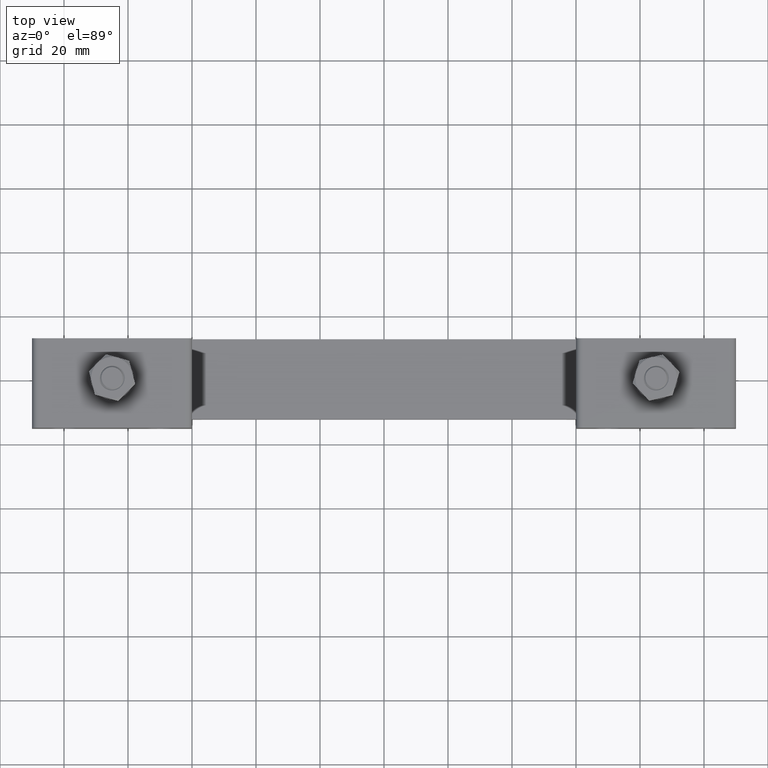
[diagram: clean part render]
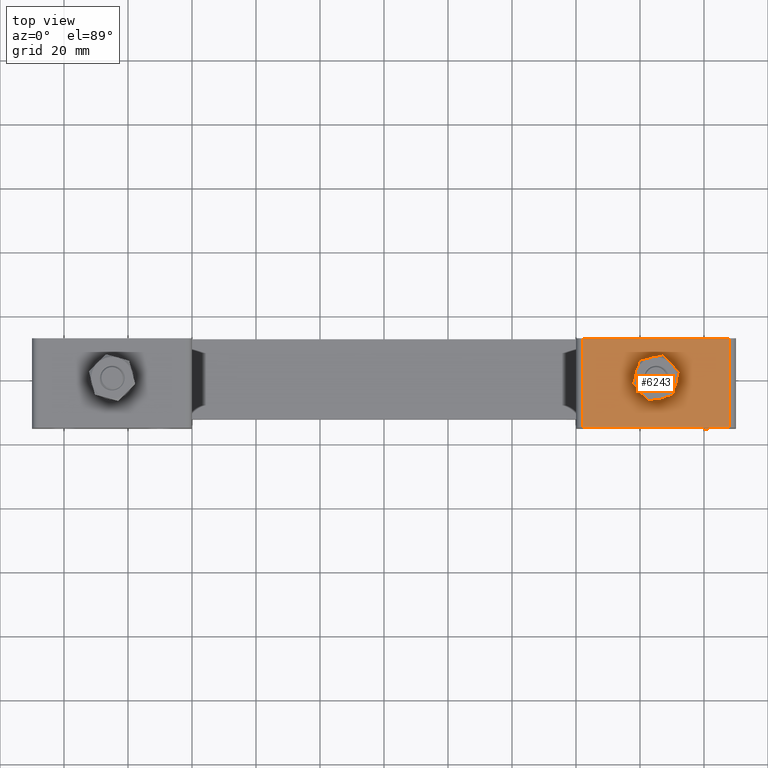
[diagram: same view with one face highlighted and labeled with its STEP entity id]
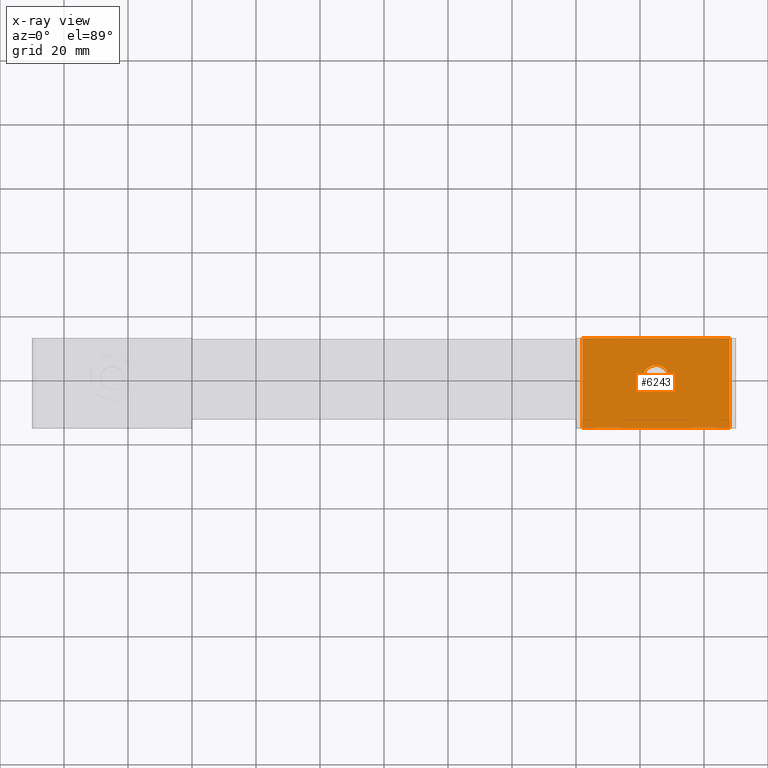
[diagram: x-ray of the same camera — body ghosted, the highlighted face saturated]
A machine part, top view. The second image highlights one B-rep face of the part: STEP entity #6243.
The next image is the same camera in x-ray: the body ghosted, the highlighted face saturated — about 0% of this face is hidden behind the body in this view.
In plain terms, the highlighted planar face has unit normal (0, -0, 1).
Its self-contained STEP definition (entity closure, byte-faithful):
#162 = EDGE_CURVE ( 'NONE', #8856, #20216, #18751, .T. ) ;
#389 = EDGE_CURVE ( 'NONE', #8116, #4044, #9849, .T. ) ;
#432 = VERTEX_POINT ( 'NONE', #20886 ) ;
#514 = AXIS2_PLACEMENT_3D ( 'NONE', #12409, #2741, #16319 ) ;
#546 = VERTEX_POINT ( 'NONE', #4016 ) ;
#1018 = EDGE_CURVE ( 'NONE', #20216, #8116, #12271, .T. ) ;
#1025 = DIRECTION ( 'NONE',  ( 1.000000000000000000, 9.436895709313830600E-016, 0.0000000000000000000 ) ) ;
#1661 = PLANE ( 'NONE',  #6769 ) ;
#2192 = CARTESIAN_POINT ( 'NONE',  ( 85.00000000000000000, 1.821459649775650000E-014, 29.00000000000000000 ) ) ;
#2741 = DIRECTION ( 'NONE',  ( 0.0000000000000000000, 0.0000000000000000000, 1.000000000000000000 ) ) ;
#2800 = CARTESIAN_POINT ( 'NONE',  ( 108.0000000000000000, 12.50000000000000000, 29.00000000000000000 ) ) ;
#3567 = DIRECTION ( 'NONE',  ( -9.436895709313830600E-016, -1.000000000000000000, 0.0000000000000000000 ) ) ;
#4016 = CARTESIAN_POINT ( 'NONE',  ( 80.90000000000000600, 1.484757444458824800E-014, 29.00000000000000000 ) ) ;
#4044 = VERTEX_POINT ( 'NONE', #14797 ) ;
#4275 = CARTESIAN_POINT ( 'NONE',  ( 62.00000000000000000, -15.50000000000000000, 29.00000000000000000 ) ) ;
#4293 = CARTESIAN_POINT ( 'NONE',  ( 60.00000000000000000, -15.50000000000000000, 29.00000000000000000 ) ) ;
#4569 = EDGE_LOOP ( 'NONE', ( #11801, #11248, #15813, #14319 ) ) ;
#5424 = CIRCLE ( 'NONE', #514, 4.100000000000006800 ) ;
#5662 = FACE_BOUND ( 'NONE', #19452, .T. ) ;
#5824 = VECTOR ( 'NONE', #1025, 1000.000000000000000 ) ;
#6224 = CARTESIAN_POINT ( 'NONE',  ( 60.00000000000000000, -15.50000000000000000, 29.00000000000000000 ) ) ;
#6243 = ADVANCED_FACE ( 'NONE', ( #5662, #14570 ), #1661, .T. ) ;
#6569 = LINE ( 'NONE', #6852, #13716 ) ;
#6594 = EDGE_CURVE ( 'NONE', #432, #546, #10265, .T. ) ;
#6769 = AXIS2_PLACEMENT_3D ( 'NONE', #6224, #19035, #17515 ) ;
#6852 = CARTESIAN_POINT ( 'NONE',  ( 62.00000000000000000, -15.50000000000000000, 29.00000000000000000 ) ) ;
#8113 = VECTOR ( 'NONE', #18542, 1000.000000000000000 ) ;
#8116 = VERTEX_POINT ( 'NONE', #20258 ) ;
#8410 = AXIS2_PLACEMENT_3D ( 'NONE', #2192, #13597, #15210 ) ;
#8531 = EDGE_CURVE ( 'NONE', #546, #432, #5424, .T. ) ;
#8856 = VERTEX_POINT ( 'NONE', #4275 ) ;
#9849 = LINE ( 'NONE', #15505, #8113 ) ;
#10265 = CIRCLE ( 'NONE', #8410, 4.100000000000006800 ) ;
#11248 = ORIENTED_EDGE ( 'NONE', *, *, #1018, .T. ) ;
#11801 = ORIENTED_EDGE ( 'NONE', *, *, #162, .T. ) ;
#12021 = VECTOR ( 'NONE', #17359, 1000.000000000000000 ) ;
#12271 = LINE ( 'NONE', #2800, #12021 ) ;
#12409 = CARTESIAN_POINT ( 'NONE',  ( 85.00000000000000000, 1.821459649775650000E-014, 29.00000000000000000 ) ) ;
#13597 = DIRECTION ( 'NONE',  ( 0.0000000000000000000, 0.0000000000000000000, 1.000000000000000000 ) ) ;
#13716 = VECTOR ( 'NONE', #3567, 1000.000000000000000 ) ;
#13952 = ORIENTED_EDGE ( 'NONE', *, *, #6594, .F. ) ;
#14319 = ORIENTED_EDGE ( 'NONE', *, *, #15787, .T. ) ;
#14544 = CARTESIAN_POINT ( 'NONE',  ( 108.0000000000000000, -15.50000000000000000, 29.00000000000000000 ) ) ;
#14570 = FACE_OUTER_BOUND ( 'NONE', #4569, .T. ) ;
#14797 = CARTESIAN_POINT ( 'NONE',  ( 62.00000000000000000, 12.50000000000000000, 29.00000000000000000 ) ) ;
#15210 = DIRECTION ( 'NONE',  ( 1.000000000000000000, 9.436895709313812800E-016, 0.0000000000000000000 ) ) ;
#15505 = CARTESIAN_POINT ( 'NONE',  ( 60.00000000000000000, 12.50000000000000000, 29.00000000000000000 ) ) ;
#15787 = EDGE_CURVE ( 'NONE', #4044, #8856, #6569, .T. ) ;
#15813 = ORIENTED_EDGE ( 'NONE', *, *, #389, .T. ) ;
#16319 = DIRECTION ( 'NONE',  ( 1.000000000000000000, 9.436895709313812800E-016, 0.0000000000000000000 ) ) ;
#16336 = ORIENTED_EDGE ( 'NONE', *, *, #8531, .F. ) ;
#17359 = DIRECTION ( 'NONE',  ( 9.436895709313830600E-016, 1.000000000000000000, 0.0000000000000000000 ) ) ;
#17515 = DIRECTION ( 'NONE',  ( 1.000000000000000000, 9.436895709313830600E-016, 0.0000000000000000000 ) ) ;
#18542 = DIRECTION ( 'NONE',  ( -1.000000000000000000, -9.436895709313830600E-016, 0.0000000000000000000 ) ) ;
#18751 = LINE ( 'NONE', #4293, #5824 ) ;
#19035 = DIRECTION ( 'NONE',  ( 0.0000000000000000000, -0.0000000000000000000, 1.000000000000000000 ) ) ;
#19452 = EDGE_LOOP ( 'NONE', ( #13952, #16336 ) ) ;
#20216 = VERTEX_POINT ( 'NONE', #14544 ) ;
#20258 = CARTESIAN_POINT ( 'NONE',  ( 108.0000000000000000, 12.50000000000000000, 29.00000000000000000 ) ) ;
#20886 = CARTESIAN_POINT ( 'NONE',  ( 89.10000000000000900, 2.208372373857517000E-014, 29.00000000000000000 ) ) ;